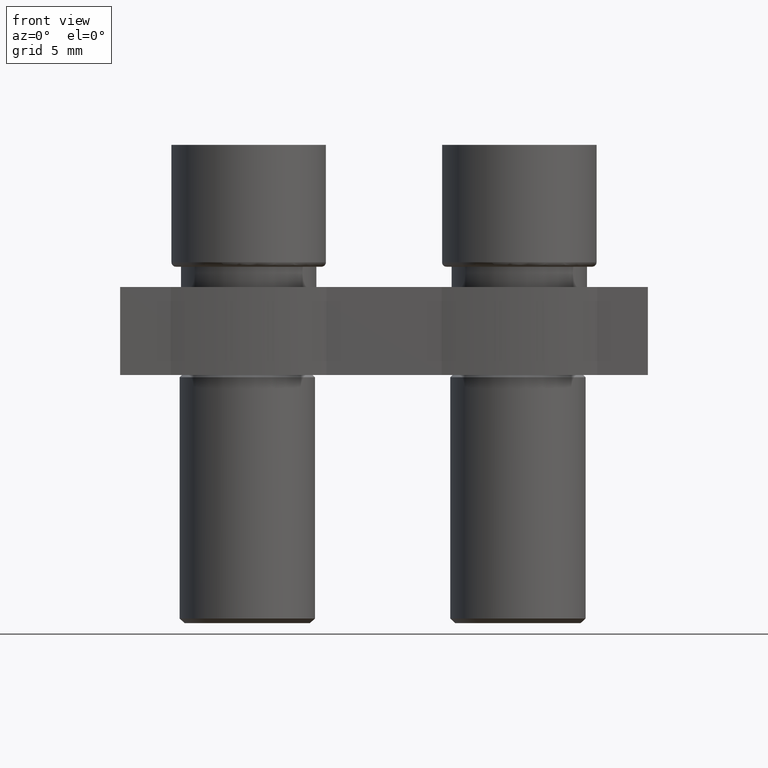
[diagram: clean part render]
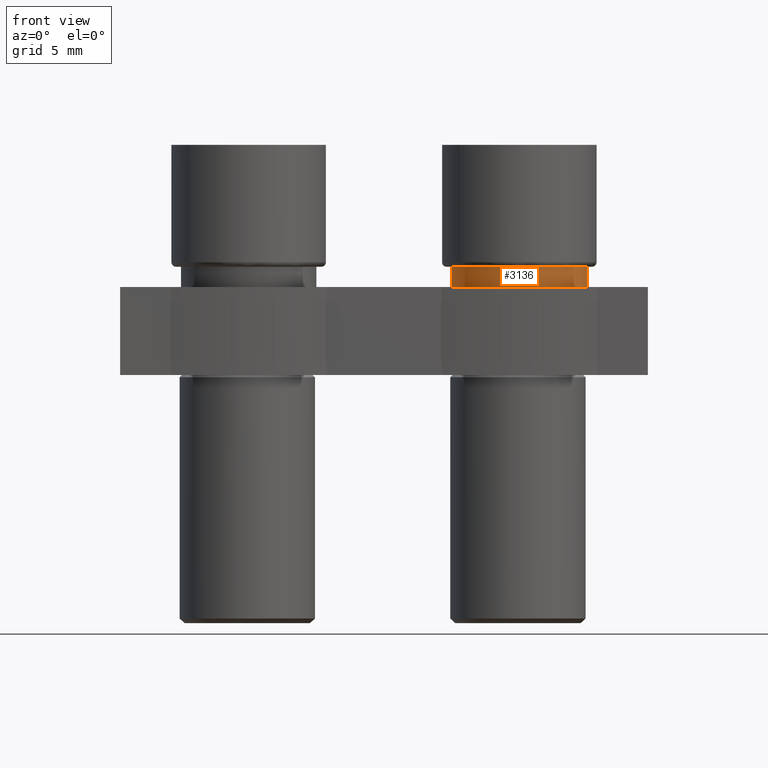
[diagram: same view with one face highlighted and labeled with its STEP entity id]
A machine part, front view. The second image highlights one B-rep face of the part: STEP entity #3136.
In plain terms, the highlighted cylindrical surface (partial cylindrical patch) has radius 3 mm, axis along (-0, -0, -1).
Its self-contained STEP definition (entity closure, byte-faithful):
#585 = DIRECTION ( 'NONE',  ( 0.0000000000000000000, 0.0000000000000000000, 1.000000000000000000 ) ) ;
#592 = CARTESIAN_POINT ( 'NONE',  ( 12.00000000000000000, 1.465963500825148300E-015, -0.9000000000000014700 ) ) ;
#595 = DIRECTION ( 'NONE',  ( -1.000000000000000000, 0.0000000000000000000, 0.0000000000000000000 ) ) ;
#988 = CARTESIAN_POINT ( 'NONE',  ( 12.00000000000000000, 1.465963500825148300E-015, 0.0000000000000000000 ) ) ;
#989 = DIRECTION ( 'NONE',  ( -0.0000000000000000000, -0.0000000000000000000, -1.000000000000000000 ) ) ;
#994 = DIRECTION ( 'NONE',  ( -1.000000000000000000, 0.0000000000000000000, 0.0000000000000000000 ) ) ;
#1007 = FACE_OUTER_BOUND ( 'NONE', #1762, .T. ) ;
#1024 = CYLINDRICAL_SURFACE ( 'NONE', #2712, 2.999999999999999100 ) ;
#1359 = DIRECTION ( 'NONE',  ( -0.0000000000000000000, -0.0000000000000000000, -1.000000000000000000 ) ) ;
#1368 = CARTESIAN_POINT ( 'NONE',  ( 9.000000000000001800, 1.465963500825148300E-015, 0.0000000000000000000 ) ) ;
#1379 = LINE ( 'NONE', #1368, #2846 ) ;
#1456 = LINE ( 'NONE', #1487, #2797 ) ;
#1487 = CARTESIAN_POINT ( 'NONE',  ( 15.00000000000000000, 1.833357540569354400E-015, 0.0000000000000000000 ) ) ;
#1494 = DIRECTION ( 'NONE',  ( -0.0000000000000000000, -0.0000000000000000000, -1.000000000000000000 ) ) ;
#1580 = VERTEX_POINT ( 'NONE', #2307 ) ;
#1586 = VERTEX_POINT ( 'NONE', #2369 ) ;
#1605 = VERTEX_POINT ( 'NONE', #2327 ) ;
#1615 = VERTEX_POINT ( 'NONE', #2432 ) ;
#1762 = EDGE_LOOP ( 'NONE', ( #2104, #2058, #2075, #2149 ) ) ;
#2058 = ORIENTED_EDGE ( 'NONE', *, *, #2979, .T. ) ;
#2075 = ORIENTED_EDGE ( 'NONE', *, *, #3194, .T. ) ;
#2104 = ORIENTED_EDGE ( 'NONE', *, *, #3219, .F. ) ;
#2149 = ORIENTED_EDGE ( 'NONE', *, *, #3034, .T. ) ;
#2307 = CARTESIAN_POINT ( 'NONE',  ( 9.000000000000001800, 1.465963500825148300E-015, 0.0000000000000000000 ) ) ;
#2327 = CARTESIAN_POINT ( 'NONE',  ( 9.000000000000001800, 1.465963500825148300E-015, -0.9000000000000014700 ) ) ;
#2369 = CARTESIAN_POINT ( 'NONE',  ( 15.00000000000000000, 1.833357540569354400E-015, -0.9000000000000014700 ) ) ;
#2432 = CARTESIAN_POINT ( 'NONE',  ( 15.00000000000000000, 1.833357540569354400E-015, 0.0000000000000000000 ) ) ;
#2513 = CARTESIAN_POINT ( 'NONE',  ( 12.00000000000000000, 1.465963500825148300E-015, 0.0000000000000000000 ) ) ;
#2516 = DIRECTION ( 'NONE',  ( -0.0000000000000000000, -0.0000000000000000000, -1.000000000000000000 ) ) ;
#2521 = DIRECTION ( 'NONE',  ( -1.000000000000000000, 0.0000000000000000000, 0.0000000000000000000 ) ) ;
#2542 = AXIS2_PLACEMENT_3D ( 'NONE', #2513, #2516, #2521 ) ;
#2547 = CIRCLE ( 'NONE', #2542, 2.999999999999999100 ) ;
#2634 = AXIS2_PLACEMENT_3D ( 'NONE', #592, #585, #595 ) ;
#2640 = CIRCLE ( 'NONE', #2634, 2.999999999999999100 ) ;
#2712 = AXIS2_PLACEMENT_3D ( 'NONE', #988, #989, #994 ) ;
#2797 = VECTOR ( 'NONE', #1494, 1000.000000000000000 ) ;
#2846 = VECTOR ( 'NONE', #1359, 1000.000000000000000 ) ;
#2979 = EDGE_CURVE ( 'NONE', #1615, #1580, #2547, .T. ) ;
#3034 = EDGE_CURVE ( 'NONE', #1605, #1586, #2640, .T. ) ;
#3136 = ADVANCED_FACE ( 'NONE', ( #1007 ), #1024, .T. ) ;
#3194 = EDGE_CURVE ( 'NONE', #1580, #1605, #1379, .T. ) ;
#3219 = EDGE_CURVE ( 'NONE', #1615, #1586, #1456, .T. ) ;